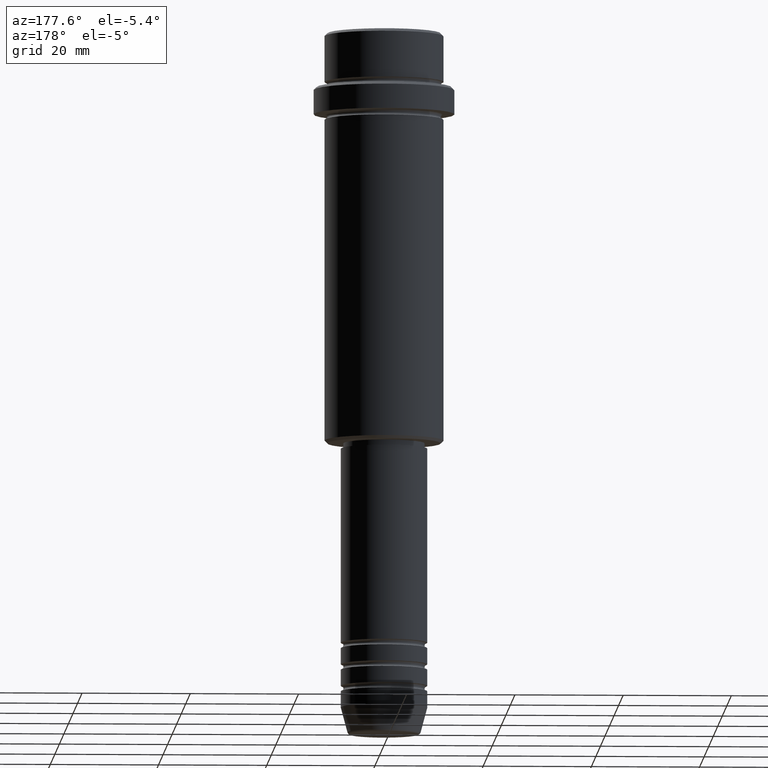
[diagram: clean part render]
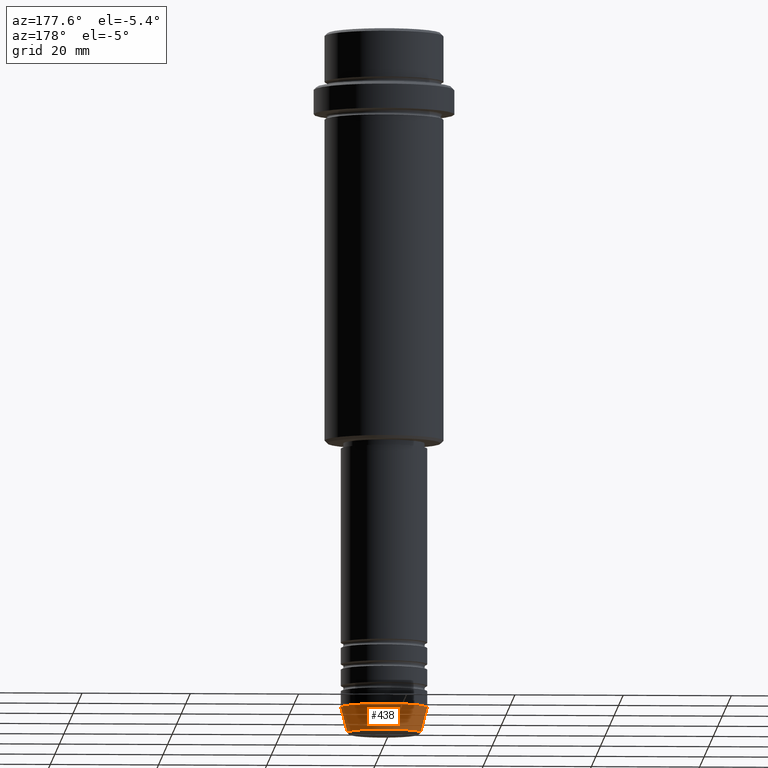
[diagram: same view with one face highlighted and labeled with its STEP entity id]
A machine part, auxiliary view. The second image highlights one B-rep face of the part: STEP entity #438.
In plain terms, the highlighted conical surface has half-angle 15 deg.
Its self-contained STEP definition (entity closure, byte-faithful):
#82 = LINE ( 'NONE', #413, #419 ) ;
#99 = VERTEX_POINT ( 'NONE', #398 ) ;
#109 = EDGE_CURVE ( 'NONE', #852, #99, #82, .T. ) ;
#135 = DIRECTION ( 'NONE',  ( -0.000000000000000000, -0.000000000000000000, 1.000000000000000000 ) ) ;
#166 = FACE_OUTER_BOUND ( 'NONE', #988, .T. ) ;
#207 = VERTEX_POINT ( 'NONE', #828 ) ;
#258 = CARTESIAN_POINT ( 'NONE',  ( 0.000000000000000000, 0.000000000000000000, -125.0000000000000000 ) ) ;
#264 = DIRECTION ( 'NONE',  ( -0.000000000000000000, -0.000000000000000000, 1.000000000000000000 ) ) ;
#365 = ORIENTED_EDGE ( 'NONE', *, *, #946, .F. ) ;
#395 = CARTESIAN_POINT ( 'NONE',  ( -6.759553456999433330, 9.037619948979304241E-16, -129.6294095225512422 ) ) ;
#398 = CARTESIAN_POINT ( 'NONE',  ( -8.000000000000000000, 9.797174393178825657E-16, -125.0000000000000000 ) ) ;
#413 = CARTESIAN_POINT ( 'NONE',  ( -8.000000000000000000, 9.797174393178825657E-16, -125.0000000000000000 ) ) ;
#418 = EDGE_CURVE ( 'NONE', #1312, #99, #977, .T. ) ;
#419 = VECTOR ( 'NONE', #518, 1000.000000000000000 ) ;
#438 = ADVANCED_FACE ( 'NONE', ( #166 ), #949, .T. ) ;
#471 = CIRCLE ( 'NONE', #1032, 6.759553456999433330 ) ;
#517 = CARTESIAN_POINT ( 'NONE',  ( 8.000000000000000000, 0.000000000000000000, -125.0000000000000000 ) ) ;
#518 = DIRECTION ( 'NONE',  ( -0.2588190451025213501, 3.169619151431772337E-17, 0.9659258262890680902 ) ) ;
#525 = LINE ( 'NONE', #753, #1077 ) ;
#619 = DIRECTION ( 'NONE',  ( 0.2588190451025213501, 0.000000000000000000, 0.9659258262890680902 ) ) ;
#663 = DIRECTION ( 'NONE',  ( -0.000000000000000000, -0.000000000000000000, 1.000000000000000000 ) ) ;
#753 = CARTESIAN_POINT ( 'NONE',  ( 8.000000000000000000, 0.000000000000000000, -125.0000000000000000 ) ) ;
#787 = CARTESIAN_POINT ( 'NONE',  ( 0.000000000000000000, 0.000000000000000000, -129.6294095225512422 ) ) ;
#815 = CARTESIAN_POINT ( 'NONE',  ( 0.000000000000000000, 0.000000000000000000, -125.0000000000000000 ) ) ;
#828 = CARTESIAN_POINT ( 'NONE',  ( 6.759553456999433330, 0.000000000000000000, -129.6294095225512422 ) ) ;
#852 = VERTEX_POINT ( 'NONE', #395 ) ;
#916 = DIRECTION ( 'NONE',  ( 1.000000000000000000, 0.000000000000000000, 0.000000000000000000 ) ) ;
#946 = EDGE_CURVE ( 'NONE', #207, #1312, #525, .T. ) ;
#949 = CONICAL_SURFACE ( 'NONE', #1137, 8.000000000000000000, 0.2617993877991500740 ) ;
#977 = CIRCLE ( 'NONE', #1279, 8.000000000000000000 ) ;
#988 = EDGE_LOOP ( 'NONE', ( #1287, #1164, #1131, #365 ) ) ;
#995 = EDGE_CURVE ( 'NONE', #207, #852, #471, .T. ) ;
#1002 = DIRECTION ( 'NONE',  ( 1.000000000000000000, 0.000000000000000000, 0.000000000000000000 ) ) ;
#1032 = AXIS2_PLACEMENT_3D ( 'NONE', #787, #135, #1002 ) ;
#1077 = VECTOR ( 'NONE', #619, 1000.000000000000000 ) ;
#1131 = ORIENTED_EDGE ( 'NONE', *, *, #418, .F. ) ;
#1137 = AXIS2_PLACEMENT_3D ( 'NONE', #258, #264, #1368 ) ;
#1164 = ORIENTED_EDGE ( 'NONE', *, *, #109, .T. ) ;
#1279 = AXIS2_PLACEMENT_3D ( 'NONE', #815, #663, #916 ) ;
#1287 = ORIENTED_EDGE ( 'NONE', *, *, #995, .T. ) ;
#1312 = VERTEX_POINT ( 'NONE', #517 ) ;
#1368 = DIRECTION ( 'NONE',  ( 1.000000000000000000, 0.000000000000000000, 0.000000000000000000 ) ) ;